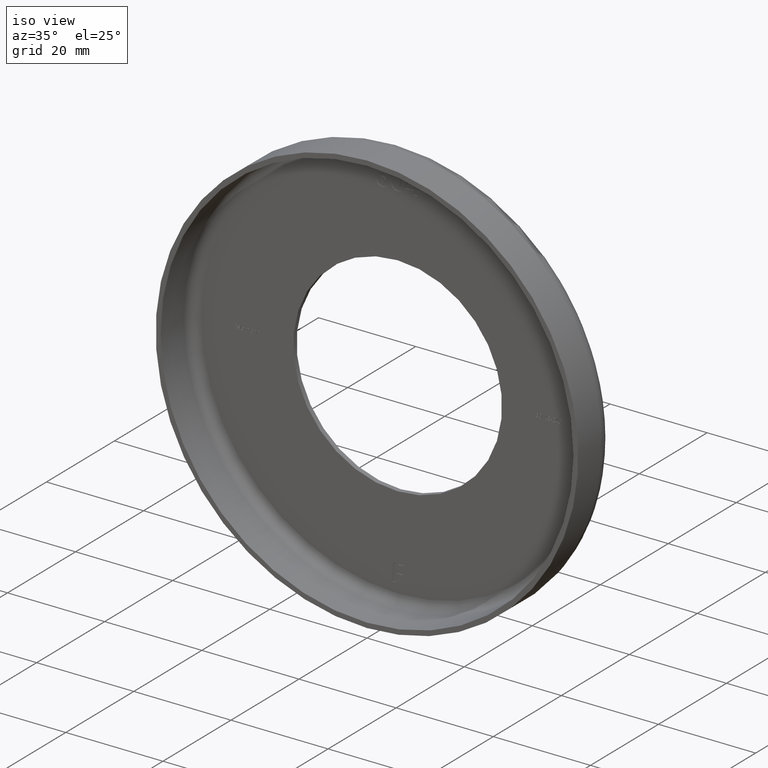
[diagram: clean part render]
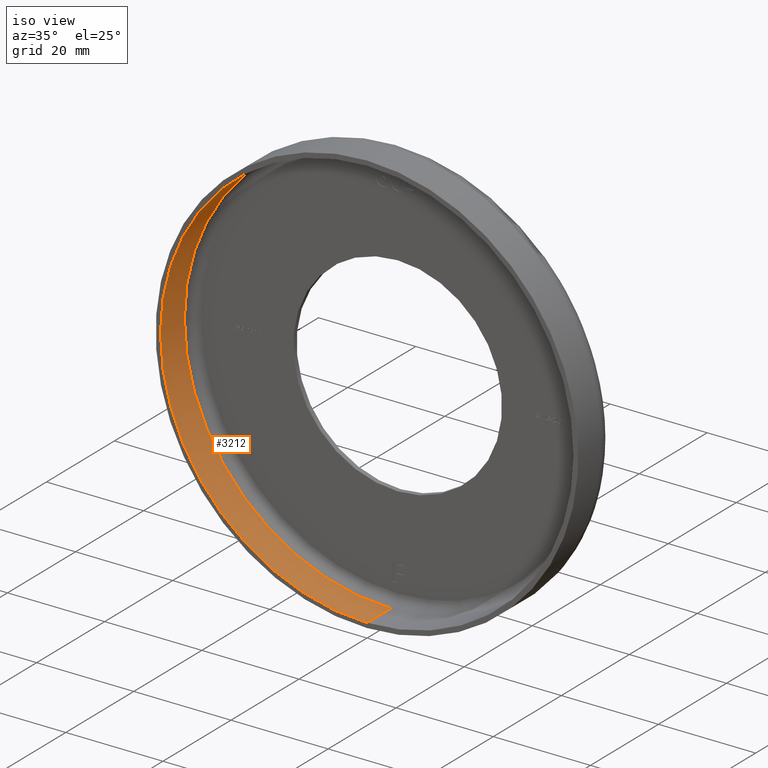
[diagram: same view with one face highlighted and labeled with its STEP entity id]
A machine part, iso view. The second image highlights one B-rep face of the part: STEP entity #3212.
In plain terms, the highlighted cylindrical surface (partial cylindrical patch) has radius 42.5 mm, axis along (-0, -1, -0).
Its self-contained STEP definition (entity closure, byte-faithful):
#1101 = VECTOR ( 'NONE', #1213, 1000.000000000000000 ) ;
#1213 = DIRECTION ( 'NONE',  ( -0.000000000000000000, -1.000000000000000000, -0.000000000000000000 ) ) ;
#1293 = CARTESIAN_POINT ( 'NONE',  ( 5.204748896376250107E-15, 6.999999999999999112, 42.49999999999999289 ) ) ;
#1427 = CARTESIAN_POINT ( 'NONE',  ( 0.000000000000000000, 0.000000000000000000, 0.000000000000000000 ) ) ;
#1469 = EDGE_CURVE ( 'NONE', #15814, #7232, #1479, .T. ) ;
#1479 = LINE ( 'NONE', #13504, #1101 ) ;
#1599 = CIRCLE ( 'NONE', #9373, 42.49999999999999289 ) ;
#2139 = ORIENTED_EDGE ( 'NONE', *, *, #1469, .F. ) ;
#2260 = EDGE_CURVE ( 'NONE', #8493, #5234, #15602, .T. ) ;
#2772 = CARTESIAN_POINT ( 'NONE',  ( 5.204748896376250107E-15, 0.000000000000000000, 42.49999999999999289 ) ) ;
#2932 = AXIS2_PLACEMENT_3D ( 'NONE', #1427, #10081, #7420 ) ;
#3212 = ADVANCED_FACE ( 'NONE', ( #9386 ), #13796, .F. ) ;
#3377 = AXIS2_PLACEMENT_3D ( 'NONE', #13610, #11309, #13716 ) ;
#4939 = CARTESIAN_POINT ( 'NONE',  ( 5.204748896376250107E-15, -1.224646799147353207E-16, 42.49999999999999289 ) ) ;
#5234 = VERTEX_POINT ( 'NONE', #4939 ) ;
#5310 = EDGE_CURVE ( 'NONE', #8493, #15814, #1599, .T. ) ;
#6246 = CIRCLE ( 'NONE', #3377, 42.49999999999999289 ) ;
#6561 = DIRECTION ( 'NONE',  ( -0.000000000000000000, -1.000000000000000000, -0.000000000000000000 ) ) ;
#6577 = DIRECTION ( 'NONE',  ( -0.000000000000000000, -1.000000000000000000, -0.000000000000000000 ) ) ;
#7205 = EDGE_CURVE ( 'NONE', #5234, #7232, #6246, .T. ) ;
#7232 = VERTEX_POINT ( 'NONE', #14876 ) ;
#7420 = DIRECTION ( 'NONE',  ( 0.000000000000000000, 0.000000000000000000, -1.000000000000000000 ) ) ;
#7840 = ORIENTED_EDGE ( 'NONE', *, *, #2260, .T. ) ;
#8493 = VERTEX_POINT ( 'NONE', #1293 ) ;
#9025 = DIRECTION ( 'NONE',  ( 0.000000000000000000, 0.000000000000000000, -1.000000000000000000 ) ) ;
#9373 = AXIS2_PLACEMENT_3D ( 'NONE', #10177, #6561, #9025 ) ;
#9386 = FACE_OUTER_BOUND ( 'NONE', #13809, .T. ) ;
#9408 = VECTOR ( 'NONE', #6577, 1000.000000000000000 ) ;
#10081 = DIRECTION ( 'NONE',  ( -0.000000000000000000, -1.000000000000000000, -0.000000000000000000 ) ) ;
#10177 = CARTESIAN_POINT ( 'NONE',  ( 0.000000000000000000, 6.999999999999999112, 0.000000000000000000 ) ) ;
#11194 = CARTESIAN_POINT ( 'NONE',  ( 0.000000000000000000, 6.999999999999999112, -42.49999999999999289 ) ) ;
#11201 = ORIENTED_EDGE ( 'NONE', *, *, #7205, .T. ) ;
#11309 = DIRECTION ( 'NONE',  ( -0.000000000000000000, -1.000000000000000000, -0.000000000000000000 ) ) ;
#13504 = CARTESIAN_POINT ( 'NONE',  ( 0.000000000000000000, 0.000000000000000000, -42.49999999999999289 ) ) ;
#13610 = CARTESIAN_POINT ( 'NONE',  ( 0.000000000000000000, -1.224646799147353207E-16, 0.000000000000000000 ) ) ;
#13716 = DIRECTION ( 'NONE',  ( 0.000000000000000000, 0.000000000000000000, -1.000000000000000000 ) ) ;
#13796 = CYLINDRICAL_SURFACE ( 'NONE', #2932, 42.49999999999999289 ) ;
#13809 = EDGE_LOOP ( 'NONE', ( #14026, #7840, #11201, #2139 ) ) ;
#14026 = ORIENTED_EDGE ( 'NONE', *, *, #5310, .F. ) ;
#14876 = CARTESIAN_POINT ( 'NONE',  ( 0.000000000000000000, -1.224646799147353207E-16, -42.49999999999999289 ) ) ;
#15602 = LINE ( 'NONE', #2772, #9408 ) ;
#15814 = VERTEX_POINT ( 'NONE', #11194 ) ;